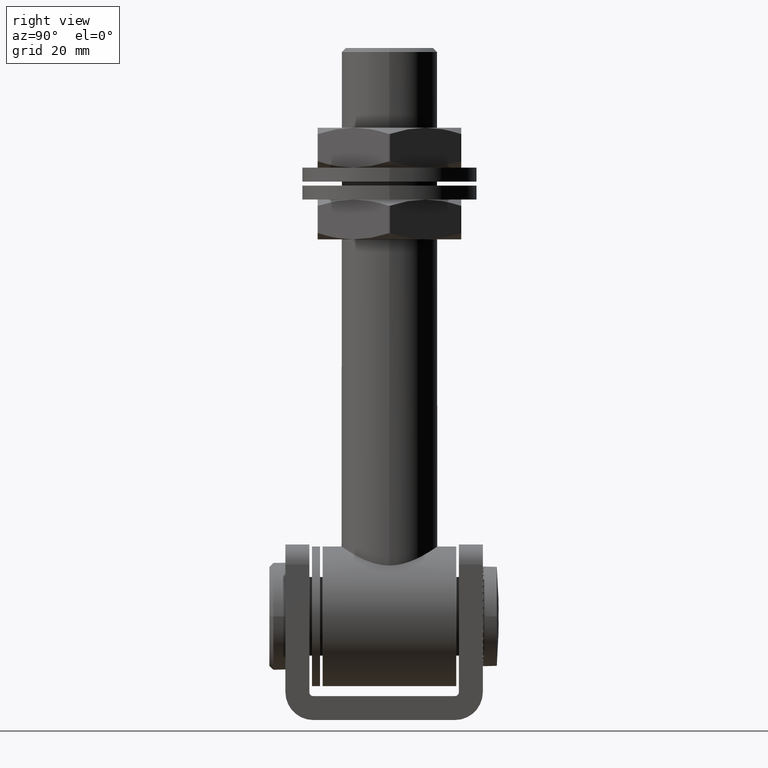
[diagram: clean part render]
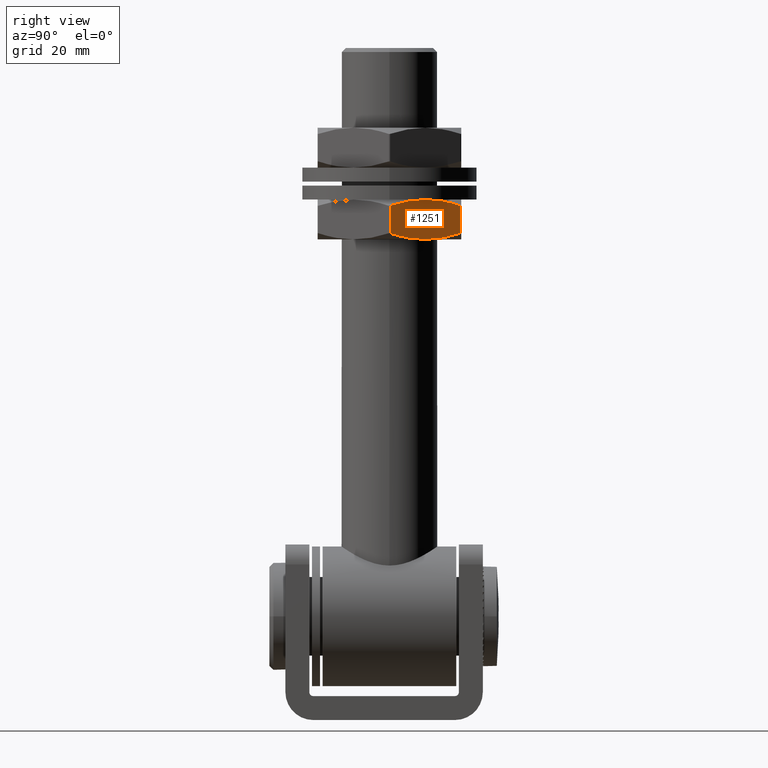
[diagram: same view with one face highlighted and labeled with its STEP entity id]
A machine part, right view. The second image highlights one B-rep face of the part: STEP entity #1251.
In plain terms, the highlighted planar face has unit normal (-0.866, -0.5, 0).
Its self-contained STEP definition (entity closure, byte-faithful):
#465 = CARTESIAN_POINT ( 'NONE',  ( 20.64027212352883112, 5.000000000000004441, -0.2499999999999943656 ) ) ;
#856 = CARTESIAN_POINT ( 'NONE',  ( 20.64027212352896257, -3.474764084930026531, -0.2499999999997675471 ) ) ;
#1251 = ADVANCED_FACE ( 'NONE', ( #11002 ), #21511, .F. ) ;
#1343 = DIRECTION ( 'NONE',  ( -0.8660254037844382635, 7.395570986447063404E-32, 0.5000000000000006661 ) ) ;
#2357 = VERTEX_POINT ( 'NONE', #18707 ) ;
#2549 = EDGE_CURVE ( 'NONE', #15727, #12145, #22170, .T. ) ;
#3155 = ORIENTED_EDGE ( 'NONE', *, *, #7630, .T. ) ;
#3745 = CARTESIAN_POINT ( 'NONE',  ( 11.36128959266734029, -3.940851841110203591, -16.32166918599612870 ) ) ;
#3773 = CARTESIAN_POINT ( 'NONE',  ( 16.01798673103099091, 4.991100823725283853, -8.256033146889681262 ) ) ;
#3842 = CARTESIAN_POINT ( 'NONE',  ( 18.98413308608356687, 4.324295589834158626, -3.118516957253399280 ) ) ;
#4083 = CARTESIAN_POINT ( 'NONE',  ( 13.87779855865312051, -4.825147480787744136, -11.96294779920614815 ) ) ;
#4350 = EDGE_CURVE ( 'NONE', #2357, #5381, #10030, .T. ) ;
#5231 = CARTESIAN_POINT ( 'NONE',  ( 15.58845726811974508, -5.000000000000004441, -8.999999999999856115 ) ) ;
#5381 = VERTEX_POINT ( 'NONE', #23415 ) ;
#5573 = CARTESIAN_POINT ( 'NONE',  ( 11.36331173878474132, 3.941994751156392862, -16.31816672618045772 ) ) ;
#5644 = CARTESIAN_POINT ( 'NONE',  ( 10.53664241271037483, 3.474764084930026531, -17.74999999999995026 ) ) ;
#7452 = CARTESIAN_POINT ( 'NONE',  ( 10.53664241271051338, -3.474764084930137553, -17.74999999999971934 ) ) ;
#7481 = CARTESIAN_POINT ( 'NONE',  ( 15.58845726811974508, 5.000000000000004441, -8.999999999999868550 ) ) ;
#7630 = EDGE_CURVE ( 'NONE', #12145, #16675, #19920, .T. ) ;
#8261 = CARTESIAN_POINT ( 'NONE',  ( 15.58845726811974508, -5.000000000000004441, -8.999999999999856115 ) ) ;
#9210 = CARTESIAN_POINT ( 'NONE',  ( 15.37422004538529663, -5.000000000000156319, -9.371069754648253536 ) ) ;
#9382 = CARTESIAN_POINT ( 'NONE',  ( 15.80269449085408162, 5.000000000000152767, -8.628930245351410733 ) ) ;
#10022 = CARTESIAN_POINT ( 'NONE',  ( 17.29852708824082086, -4.855426502465870264, -6.038072187059862372 ) ) ;
#10030 = B_SPLINE_CURVE_WITH_KNOTS ( 'NONE', 3,
 ( #5644, #5573, #10779, #14491, #20179, #23665 ),
 .UNSPECIFIED., .F., .F.,
 ( 4, 2, 4 ),
 ( 0.0002977047320976552655, 0.005406626464723749380, 0.01051554819734984436 ),
 .UNSPECIFIED. ) ;
#10251 = CARTESIAN_POINT ( 'NONE',  ( 16.44868394276404899, -5.000000000000149214, -7.510043693489792282 ) ) ;
#10779 = CARTESIAN_POINT ( 'NONE',  ( 12.19598677790559726, 4.325605780329810024, -14.87593125222872992 ) ) ;
#11002 = FACE_OUTER_BOUND ( 'NONE', #18962, .T. ) ;
#11038 = CARTESIAN_POINT ( 'NONE',  ( 14.51660190833984743, -4.929390122363356497, -10.85650794150353526 ) ) ;
#11060 = CARTESIAN_POINT ( 'NONE',  ( 20.64027212352882401, 3.474764084930137553, -0.2500000000000121569 ) ) ;
#11153 = CARTESIAN_POINT ( 'NONE',  ( 16.44668568854885038, 4.955776413173794914, -7.513504771316941167 ) ) ;
#11221 = CARTESIAN_POINT ( 'NONE',  ( 10.53664241271050450, 5.000000000000004441, -17.74999999999979039 ) ) ;
#11286 = CARTESIAN_POINT ( 'NONE',  ( 15.58845726811974508, -5.000000000000004441, -8.999999999999856115 ) ) ;
#11382 = CARTESIAN_POINT ( 'NONE',  ( 17.29911597758625419, 4.825147480787734366, -6.037052200793538326 ) ) ;
#11865 = CARTESIAN_POINT ( 'NONE',  ( 20.64027212352896257, -3.474764084930026531, -0.2499999999997675471 ) ) ;
#12117 = CARTESIAN_POINT ( 'NONE',  ( 18.98092775833376677, -4.325605780329797589, -3.124068747770973875 ) ) ;
#12145 = VERTEX_POINT ( 'NONE', #856 ) ;
#12173 = CARTESIAN_POINT ( 'NONE',  ( 10.53664241271051338, -3.474764084930137553, -17.74999999999971934 ) ) ;
#12229 = ORIENTED_EDGE ( 'NONE', *, *, #4350, .T. ) ;
#12382 = CARTESIAN_POINT ( 'NONE',  ( 20.78460969082623322, 5.000000000000004441, 4.336808689942017736E-16 ) ) ;
#12697 = VECTOR ( 'NONE', #13604, 1000.000000000000000 ) ;
#13087 = CARTESIAN_POINT ( 'NONE',  ( 19.81562494357200777, 3.940851841110195597, -1.678330814003601956 ) ) ;
#13151 = CARTESIAN_POINT ( 'NONE',  ( 12.19278145015578296, -4.324295589834167508, -14.88148304274631784 ) ) ;
#13449 = EDGE_CURVE ( 'NONE', #5381, #15727, #19172, .T. ) ;
#13604 = DIRECTION ( 'NONE',  ( 7.395570986446924369E-32, -1.000000000000000000, -4.930380657631293130E-32 ) ) ;
#14221 = DIRECTION ( 'NONE',  ( 0.5000000000000006661, 4.930380657631374143E-32, 0.8660254037844382635 ) ) ;
#14430 = ORIENTED_EDGE ( 'NONE', *, *, #2549, .T. ) ;
#14491 = CARTESIAN_POINT ( 'NONE',  ( 13.87838744799854140, 4.855426502465878258, -11.96192781293981788 ) ) ;
#14752 = CARTESIAN_POINT ( 'NONE',  ( 15.15892780520838734, -4.991100823725286517, -9.743966853109983006 ) ) ;
#14822 = CARTESIAN_POINT ( 'NONE',  ( 14.73022884769052432, -4.955776413173799355, -10.48649522868273110 ) ) ;
#14850 = CARTESIAN_POINT ( 'NONE',  ( 16.66031262789952549, 4.929390122363352056, -7.143492058496144104 ) ) ;
#15275 = CARTESIAN_POINT ( 'NONE',  ( 20.64027212352882401, 3.474764084930137553, -0.2500000000000121569 ) ) ;
#15727 = VERTEX_POINT ( 'NONE', #15275 ) ;
#16605 = CARTESIAN_POINT ( 'NONE',  ( 13.45470436724210117, -4.722150001668179442, -12.69576843511729436 ) ) ;
#16675 = VERTEX_POINT ( 'NONE', #5231 ) ;
#16770 = EDGE_CURVE ( 'NONE', #21068, #2357, #17185, .T. ) ;
#16907 = VECTOR ( 'NONE', #18849, 1000.000000000000000 ) ;
#17185 = LINE ( 'NONE', #11221, #16907 ) ;
#17292 = ORIENTED_EDGE ( 'NONE', *, *, #13449, .T. ) ;
#17984 = AXIS2_PLACEMENT_3D ( 'NONE', #12382, #1343, #14221 ) ;
#18707 = CARTESIAN_POINT ( 'NONE',  ( 10.53664241271037483, 3.474764084930026531, -17.74999999999995026 ) ) ;
#18849 = DIRECTION ( 'NONE',  ( -7.395570986446924369E-32, 1.000000000000000000, 4.930380657631293130E-32 ) ) ;
#18962 = EDGE_LOOP ( 'NONE', ( #17292, #14430, #3155, #20137, #21684, #12229 ) ) ;
#19172 = B_SPLINE_CURVE_WITH_KNOTS ( 'NONE', 3,
 ( #7481, #9382, #3773, #11153, #14850, #11382, #22164, #3842, #13087, #11060 ),
 .UNSPECIFIED., .F., .F.,
 ( 4, 2, 2, 2, 4 ),
 ( 0.01051554819734984436, 0.01178791190731941739, 0.01306027561728899389, 0.01560500303722814515, 0.02069445787710645288 ),
 .UNSPECIFIED. ) ;
#19920 = B_SPLINE_CURVE_WITH_KNOTS ( 'NONE', 3,
 ( #11865, #21196, #12117, #10022, #10251, #8261 ),
 .UNSPECIFIED., .F., .F.,
 ( 4, 2, 4 ),
 ( 0.0002977047320976052296, 0.005406626464723692134, 0.01051554819734978018 ),
 .UNSPECIFIED. ) ;
#20137 = ORIENTED_EDGE ( 'NONE', *, *, #22838, .T. ) ;
#20179 = CARTESIAN_POINT ( 'NONE',  ( 14.72823059347532748, 5.000000000000156319, -10.48995630650988531 ) ) ;
#21065 = B_SPLINE_CURVE_WITH_KNOTS ( 'NONE', 3,
 ( #11286, #9210, #14752, #14822, #11038, #4083, #16605, #13151, #3745, #7452 ),
 .UNSPECIFIED., .F., .F.,
 ( 4, 2, 2, 2, 4 ),
 ( 0.01051554819734978018, 0.01178791190731936535, 0.01306027561728895225, 0.01560500303722812780, 0.02069445787710648410 ),
 .UNSPECIFIED. ) ;
#21068 = VERTEX_POINT ( 'NONE', #12173 ) ;
#21196 = CARTESIAN_POINT ( 'NONE',  ( 19.81360279745461739, -3.941994751156383536, -1.681833273819258734 ) ) ;
#21511 = PLANE ( 'NONE',  #17984 ) ;
#21684 = ORIENTED_EDGE ( 'NONE', *, *, #16770, .T. ) ;
#22164 = CARTESIAN_POINT ( 'NONE',  ( 17.72221016899726109, 4.722150001668170560, -5.304231564882405436 ) ) ;
#22170 = LINE ( 'NONE', #465, #12697 ) ;
#22838 = EDGE_CURVE ( 'NONE', #16675, #21068, #21065, .T. ) ;
#23415 = CARTESIAN_POINT ( 'NONE',  ( 15.58845726811974508, 5.000000000000004441, -8.999999999999868550 ) ) ;
#23665 = CARTESIAN_POINT ( 'NONE',  ( 15.58845726811974508, 5.000000000000004441, -8.999999999999868550 ) ) ;